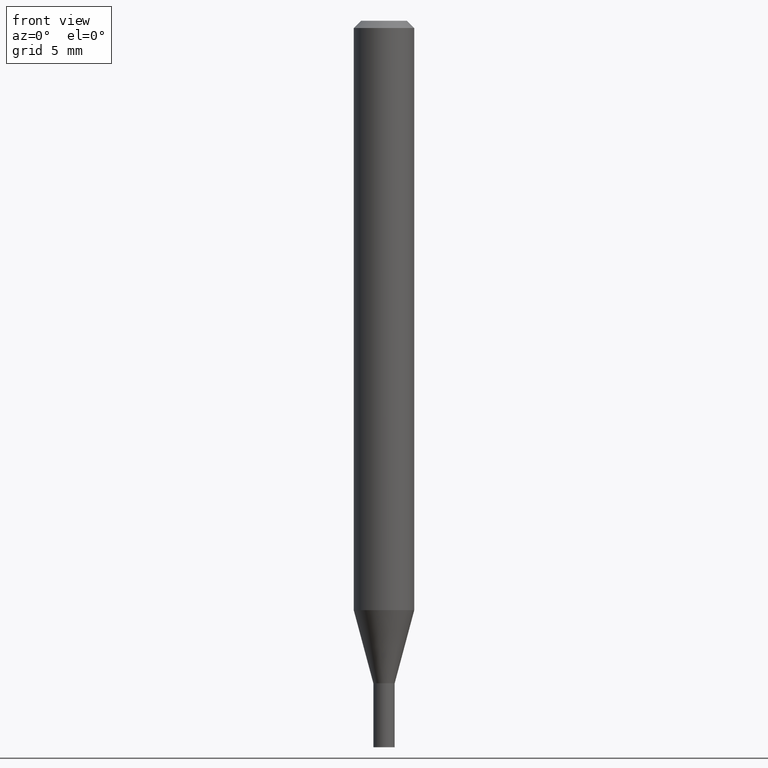
[diagram: clean part render]
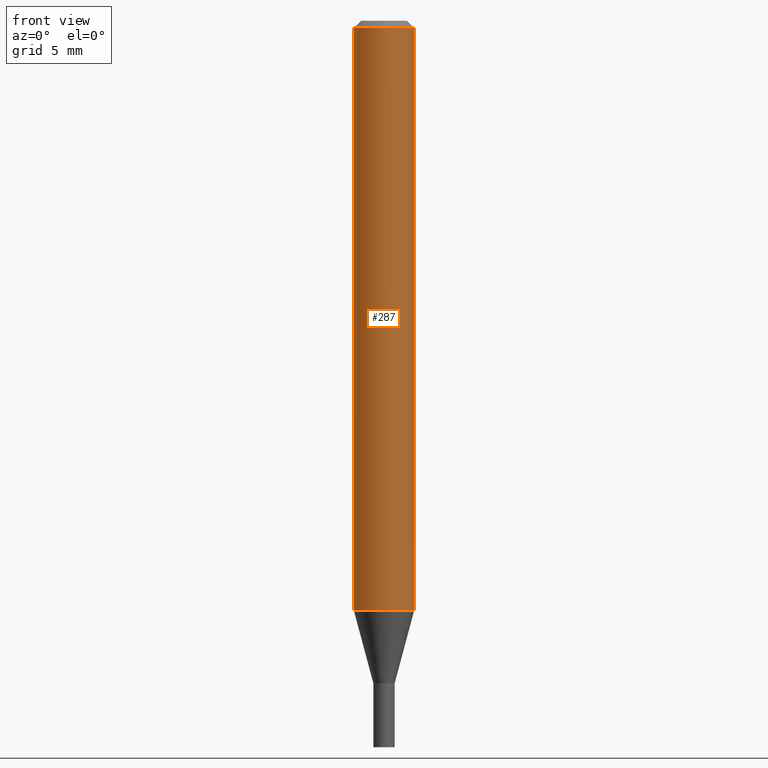
[diagram: same view with one face highlighted and labeled with its STEP entity id]
A machine part, front view. The second image highlights one B-rep face of the part: STEP entity #287.
In plain terms, the highlighted cylindrical surface (edge-blend (fillet) strip) has radius 1.5875 mm, axis along (-0, 0, 1).
Its self-contained STEP definition (entity closure, byte-faithful):
#25 = LINE ( 'NONE', #462, #100 ) ;
#29 = AXIS2_PLACEMENT_3D ( 'NONE', #172, #214, #454 ) ;
#34 = VERTEX_POINT ( 'NONE', #127 ) ;
#68 = DIRECTION ( 'NONE',  ( -2.445468806185136877E-29, 3.491481338843145188E-15, 1.000000000000000000 ) ) ;
#79 = EDGE_LOOP ( 'NONE', ( #421, #108, #375, #205 ) ) ;
#85 = DIRECTION ( 'NONE',  ( -2.445468806185136597E-29, 3.491481338843145583E-15, 1.000000000000000000 ) ) ;
#100 = VECTOR ( 'NONE', #68, 39.37007874015748143 ) ;
#108 = ORIENTED_EDGE ( 'NONE', *, *, #397, .T. ) ;
#127 = CARTESIAN_POINT ( 'NONE',  ( -0.06249999999999999306, -3.804526638802586582E-15, -1.216851942293459166 ) ) ;
#129 = CARTESIAN_POINT ( 'NONE',  ( 0.000000000000000000, 0.000000000000000000, 0.000000000000000000 ) ) ;
#141 = DIRECTION ( 'NONE',  ( 1.000000000000000000, -6.982962677686262766E-15, 0.000000000000000000 ) ) ;
#148 = EDGE_CURVE ( 'NONE', #34, #224, #189, .T. ) ;
#172 = CARTESIAN_POINT ( 'NONE',  ( 3.668203209277705088E-31, -5.237222008264718399E-17, -0.01499999999999999944 ) ) ;
#183 = VERTEX_POINT ( 'NONE', #185 ) ;
#185 = CARTESIAN_POINT ( 'NONE',  ( 0.06250000000000000000, -4.888073874380388472E-16, -0.01499999999999999944 ) ) ;
#189 = LINE ( 'NONE', #373, #419 ) ;
#205 = ORIENTED_EDGE ( 'NONE', *, *, #315, .F. ) ;
#214 = DIRECTION ( 'NONE',  ( -2.445468806185136597E-29, 3.491481338843145583E-15, 1.000000000000000000 ) ) ;
#224 = VERTEX_POINT ( 'NONE', #304 ) ;
#227 = VERTEX_POINT ( 'NONE', #239 ) ;
#239 = CARTESIAN_POINT ( 'NONE',  ( 0.06249999999999999306, -4.685051016008040868E-15, -1.216851942293459166 ) ) ;
#241 = AXIS2_PLACEMENT_3D ( 'NONE', #129, #283, #348 ) ;
#257 = CIRCLE ( 'NONE', #29, 0.06250000000000000000 ) ;
#283 = DIRECTION ( 'NONE',  ( -2.445468806185136597E-29, 3.491481338843145583E-15, 1.000000000000000000 ) ) ;
#287 = ADVANCED_FACE ( 'NONE', ( #463 ), #460, .T. ) ;
#304 = CARTESIAN_POINT ( 'NONE',  ( -0.06250000000000000000, -1.706404824517585325E-15, -0.01499999999999999944 ) ) ;
#315 = EDGE_CURVE ( 'NONE', #224, #183, #257, .T. ) ;
#332 = DIRECTION ( 'NONE',  ( -2.445468806185136877E-29, 3.491481338843145188E-15, 1.000000000000000000 ) ) ;
#335 = EDGE_CURVE ( 'NONE', #227, #183, #25, .T. ) ;
#348 = DIRECTION ( 'NONE',  ( 1.000000000000000000, -6.982962677686266711E-15, 4.876176775795935793E-29 ) ) ;
#373 = CARTESIAN_POINT ( 'NONE',  ( -0.06250000000000000000, 4.440892098500626162E-16, -3.074334431409316114E-30 ) ) ;
#375 = ORIENTED_EDGE ( 'NONE', *, *, #335, .T. ) ;
#397 = EDGE_CURVE ( 'NONE', #34, #227, #420, .T. ) ;
#412 = CARTESIAN_POINT ( 'NONE',  ( 2.975773466624450297E-29, -4.248615848652648409E-15, -1.216851942293459166 ) ) ;
#419 = VECTOR ( 'NONE', #332, 39.37007874015748143 ) ;
#420 = CIRCLE ( 'NONE', #433, 0.06250000000000000000 ) ;
#421 = ORIENTED_EDGE ( 'NONE', *, *, #148, .F. ) ;
#433 = AXIS2_PLACEMENT_3D ( 'NONE', #412, #85, #141 ) ;
#454 = DIRECTION ( 'NONE',  ( 1.000000000000000000, -6.982962677686266711E-15, 0.000000000000000000 ) ) ;
#460 = CYLINDRICAL_SURFACE ( 'NONE', #241, 0.06250000000000000000 ) ;
#462 = CARTESIAN_POINT ( 'NONE',  ( 0.06250000000000000000, -4.364351673553916694E-16, 3.047610484872459871E-30 ) ) ;
#463 = FACE_OUTER_BOUND ( 'NONE', #79, .T. ) ;